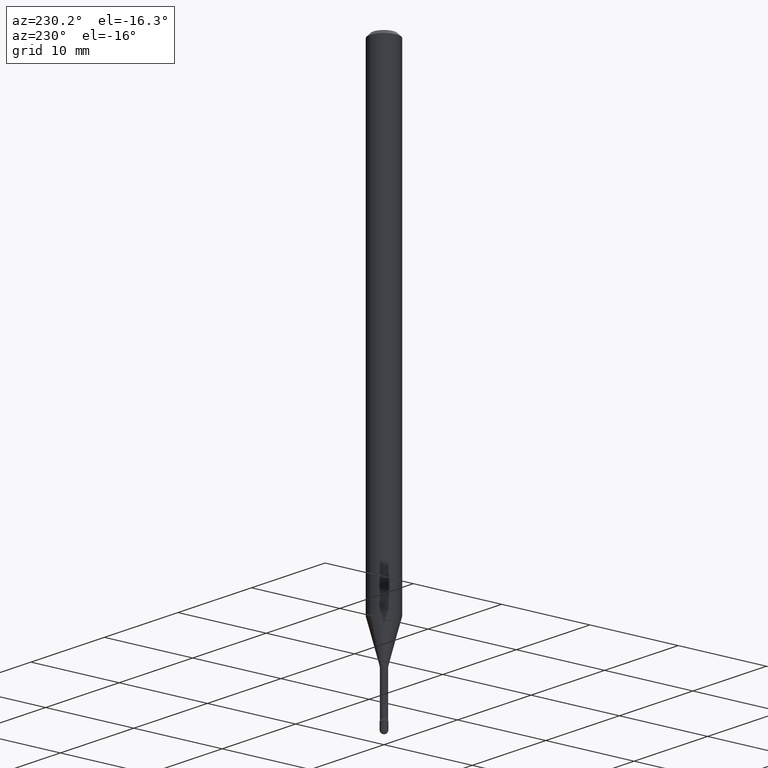
[diagram: clean part render]
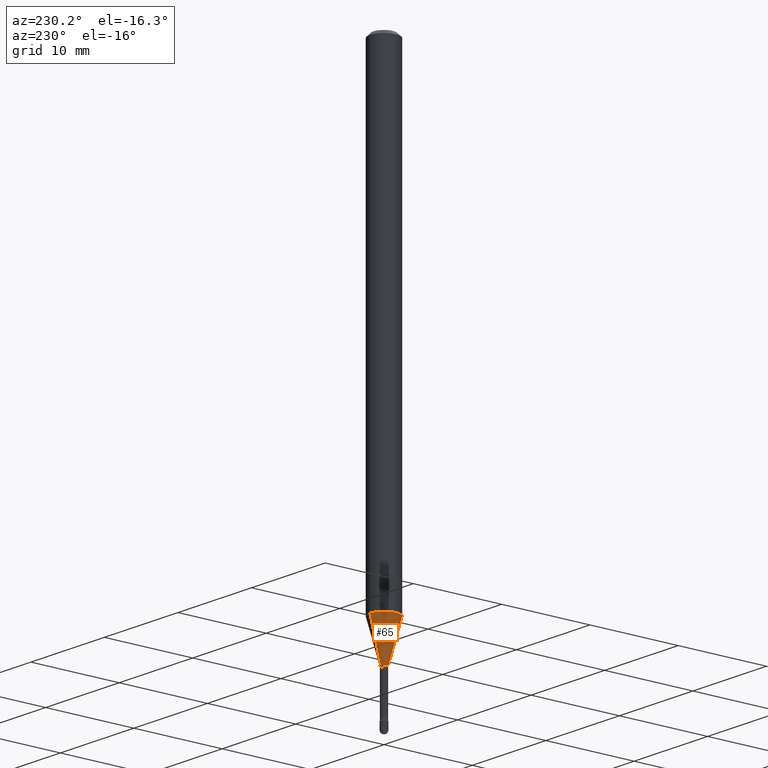
[diagram: same view with one face highlighted and labeled with its STEP entity id]
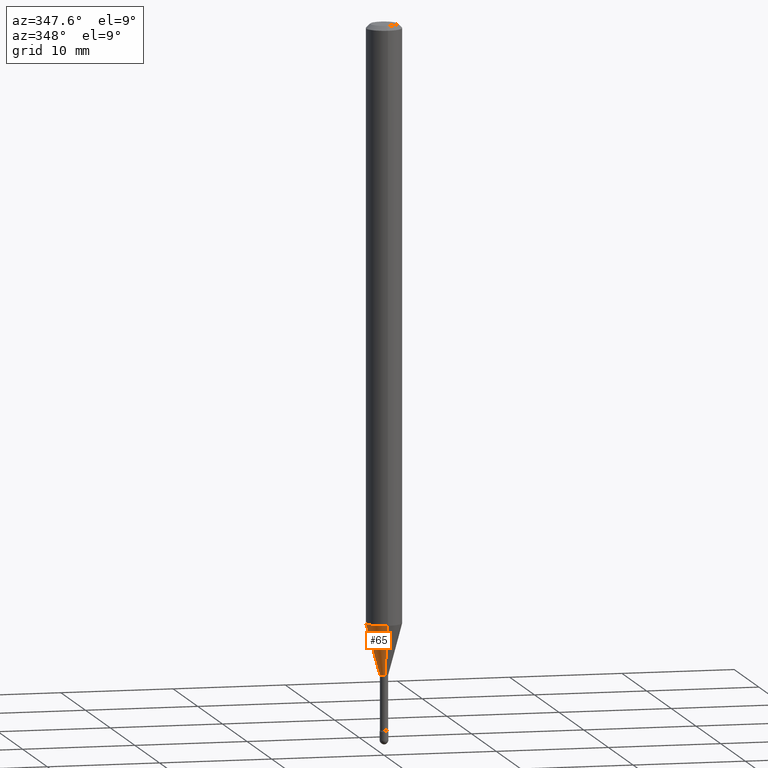
[diagram: same view with one face highlighted and labeled with its STEP entity id]
A machine part, auxiliary view. The second image highlights one B-rep face of the part: STEP entity #65.
A second angle (auxiliary view) of the same face is appended — the face is thin or edge-on in the first view.
In plain terms, the highlighted conical surface has half-angle 15 deg.
Its self-contained STEP definition (entity closure, byte-faithful):
#25 = CIRCLE ( 'NONE', #243, 0.06250000000000000000 ) ;
#59 = ORIENTED_EDGE ( 'NONE', *, *, #175, .T. ) ;
#65 = ADVANCED_FACE ( 'NONE', ( #203 ), #554, .T. ) ;
#89 = EDGE_CURVE ( 'NONE', #251, #319, #25, .T. ) ;
#102 = CARTESIAN_POINT ( 'NONE',  ( 1.038181992333288843E-16, 0.01461111260565609374, -2.258092501787273498 ) ) ;
#104 = VERTEX_POINT ( 'NONE', #387 ) ;
#127 = CARTESIAN_POINT ( 'NONE',  ( 2.739537045417211848E-16, 0.01461111260565609374, -2.258092501787273498 ) ) ;
#146 = DIRECTION ( 'NONE',  ( -6.982962677686265922E-15, -1.000000000000000000, 4.370956789862821150E-15 ) ) ;
#167 = VERTEX_POINT ( 'NONE', #127 ) ;
#175 = EDGE_CURVE ( 'NONE', #167, #104, #314, .T. ) ;
#185 = ORIENTED_EDGE ( 'NONE', *, *, #89, .F. ) ;
#198 = VECTOR ( 'NONE', #421, 39.37007874015749564 ) ;
#203 = FACE_OUTER_BOUND ( 'NONE', #409, .T. ) ;
#239 = CARTESIAN_POINT ( 'NONE',  ( -4.364351673553407386E-16, -0.06250000000000725808, -2.079368740913666969 ) ) ;
#243 = AXIS2_PLACEMENT_3D ( 'NONE', #287, #464, #146 ) ;
#251 = VERTEX_POINT ( 'NONE', #275 ) ;
#263 = DIRECTION ( 'NONE',  ( -2.445419966882117621E-29, 3.491551279504829123E-15, 1.000000000000000000 ) ) ;
#275 = CARTESIAN_POINT ( 'NONE',  ( 4.440892098501132019E-16, 0.06249999999999272804, -2.079368740913667413 ) ) ;
#287 = CARTESIAN_POINT ( 'NONE',  ( 5.084929837540810216E-29, -7.260222587899458845E-15, -2.079368740913666969 ) ) ;
#294 = AXIS2_PLACEMENT_3D ( 'NONE', #373, #515, #552 ) ;
#314 = CIRCLE ( 'NONE', #362, 0.01461111260566397632 ) ;
#319 = VERTEX_POINT ( 'NONE', #239 ) ;
#353 = LINE ( 'NONE', #102, #484 ) ;
#362 = AXIS2_PLACEMENT_3D ( 'NONE', #519, #263, #454 ) ;
#366 = CARTESIAN_POINT ( 'NONE',  ( -1.020288540047676708E-16, -0.01461111260567186064, -2.258092501787273498 ) ) ;
#373 = CARTESIAN_POINT ( 'NONE',  ( 5.521984490937392586E-29, -7.884245763855615505E-15, -2.258092501787273498 ) ) ;
#387 = CARTESIAN_POINT ( 'NONE',  ( -1.020288540047676708E-16, -0.01461111260567186064, -2.258092501787273498 ) ) ;
#404 = ORIENTED_EDGE ( 'NONE', *, *, #449, .F. ) ;
#409 = EDGE_LOOP ( 'NONE', ( #404, #59, #416, #185 ) ) ;
#416 = ORIENTED_EDGE ( 'NONE', *, *, #522, .T. ) ;
#421 = DIRECTION ( 'NONE',  ( -1.807323732225328562E-15, -0.2588190451025179639, 0.9659258262890689783 ) ) ;
#449 = EDGE_CURVE ( 'NONE', #167, #251, #353, .T. ) ;
#451 = LINE ( 'NONE', #366, #198 ) ;
#454 = DIRECTION ( 'NONE',  ( -6.982962677686265922E-15, -1.000000000000000000, 0.000000000000000000 ) ) ;
#464 = DIRECTION ( 'NONE',  ( -2.445419966882117621E-29, 3.491551279504829123E-15, 1.000000000000000000 ) ) ;
#484 = VECTOR ( 'NONE', #537, 39.37007874015747433 ) ;
#515 = DIRECTION ( 'NONE',  ( -2.445419966882117621E-29, 3.491551279504829123E-15, 1.000000000000000000 ) ) ;
#519 = CARTESIAN_POINT ( 'NONE',  ( 5.521984490937392586E-29, -7.884245763855615505E-15, -2.258092501787273498 ) ) ;
#522 = EDGE_CURVE ( 'NONE', #104, #319, #451, .T. ) ;
#537 = DIRECTION ( 'NONE',  ( 1.839019923739599526E-15, 0.2588190451025248473, 0.9659258262890673130 ) ) ;
#552 = DIRECTION ( 'NONE',  ( -6.982962677686265922E-15, -1.000000000000000000, 0.000000000000000000 ) ) ;
#554 = CONICAL_SURFACE ( 'NONE', #294, 0.01461111260566397632, 0.2617993877991501295 ) ;